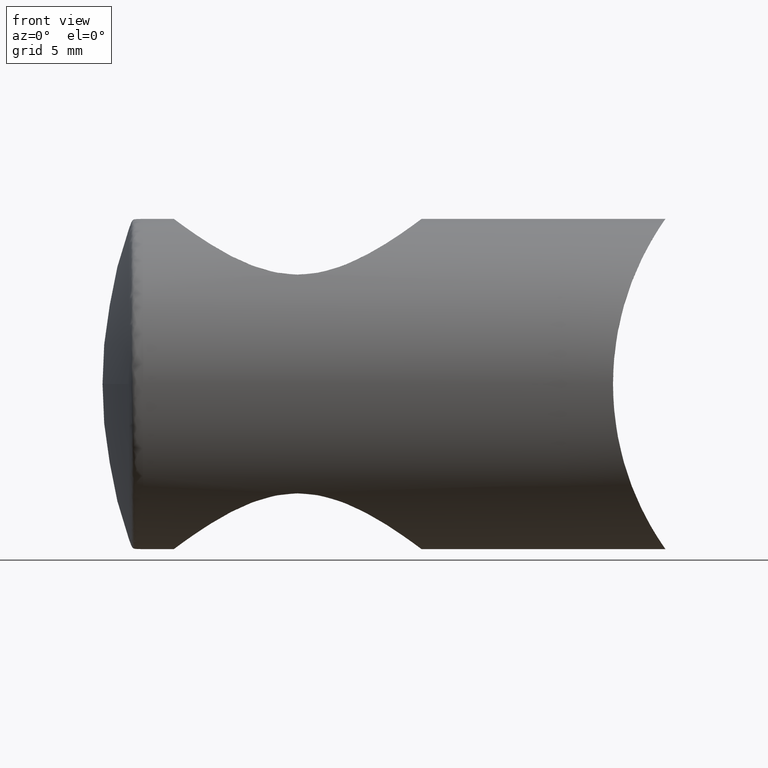
[diagram: clean part render]
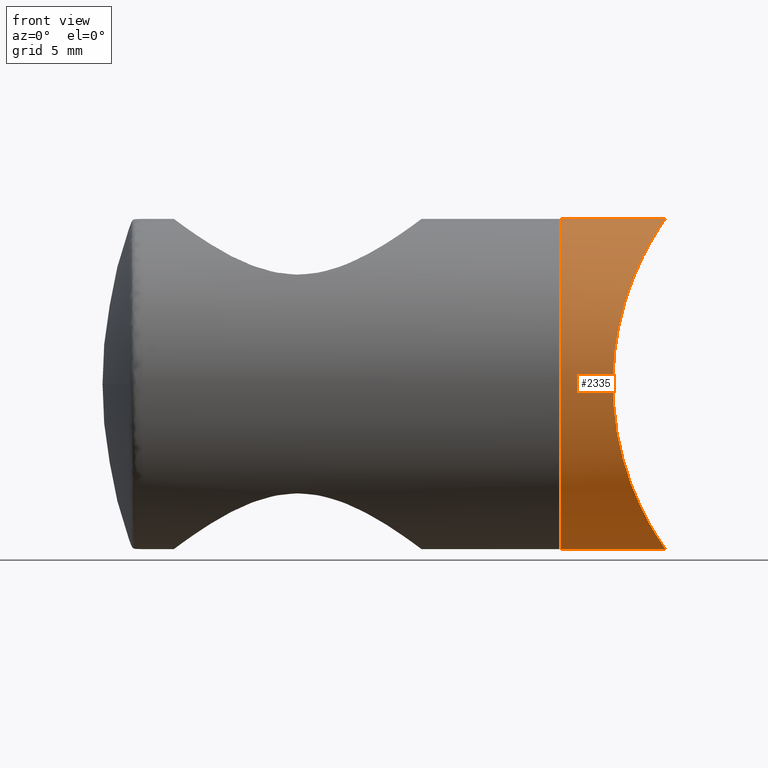
[diagram: same view with one face highlighted and labeled with its STEP entity id]
A machine part, front view. The second image highlights one B-rep face of the part: STEP entity #2335.
In plain terms, the highlighted cylindrical surface (partial cylindrical patch) has radius 11 mm, axis along (1, 0, 0).
Its self-contained STEP definition (entity closure, byte-faithful):
#4 = CARTESIAN_POINT ( 'NONE',  ( -6.456664575229944500, -10.39882424911159700, 3.605331494777063800 ) ) ;
#35 = EDGE_CURVE ( 'NONE', #5327, #5464, #2871, .T. ) ;
#62 = CARTESIAN_POINT ( 'NONE',  ( -3.290422593462756700, 1.001141658456604700E-015, -11.00000000000000000 ) ) ;
#119 = EDGE_CURVE ( 'NONE', #4464, #1450, #1755, .T. ) ;
#235 = CARTESIAN_POINT ( 'NONE',  ( -3.494806216514638300, -2.549407367438256200, 10.70669956222132400 ) ) ;
#261 = CARTESIAN_POINT ( 'NONE',  ( 0.0000000000000000000, 0.0000000000000000000, 0.0000000000000000000 ) ) ;
#274 = CARTESIAN_POINT ( 'NONE',  ( -6.579793492027664400, -10.61816424967427400, -2.896384209849269400 ) ) ;
#392 = CARTESIAN_POINT ( 'NONE',  ( -3.290422593462754000, -0.3722244977303322800, -10.99999999999999600 ) ) ;
#404 = DIRECTION ( 'NONE',  ( 0.0000000000000000000, 0.0000000000000000000, -1.000000000000000000 ) ) ;
#433 = CARTESIAN_POINT ( 'NONE',  ( -3.780638346371605800, -3.940766608476689900, -10.27607600446329700 ) ) ;
#443 = DIRECTION ( 'NONE',  ( 1.000000000000000000, -0.0000000000000000000, -0.0000000000000000000 ) ) ;
#471 = CARTESIAN_POINT ( 'NONE',  ( -3.290422593462756700, 1.377172786966447000E-015, 11.00000000000000000 ) ) ;
#608 = CARTESIAN_POINT ( 'NONE',  ( -3.290422593462753100, -0.3716663094851668800, 11.00000000000000000 ) ) ;
#619 = ORIENTED_EDGE ( 'NONE', *, *, #119, .T. ) ;
#680 = CARTESIAN_POINT ( 'NONE',  ( -3.356093708547345700, -1.473727821078040000, 10.90701569041684000 ) ) ;
#701 = CARTESIAN_POINT ( 'NONE',  ( -3.394636655602445000, -1.834427153566935600, -10.85209558101731800 ) ) ;
#719 = CARTESIAN_POINT ( 'NONE',  ( -4.250336640323755700, -5.545353003719242200, 9.506591479203063200 ) ) ;
#827 = CARTESIAN_POINT ( 'NONE',  ( -10.28848920863309300, 0.0000000000000000000, 0.0000000000000000000 ) ) ;
#838 = LINE ( 'NONE', #3051, #5018 ) ;
#1066 = CARTESIAN_POINT ( 'NONE',  ( -3.699711800985851600, -3.600747771440393000, 10.40037994727684500 ) ) ;
#1122 = CARTESIAN_POINT ( 'NONE',  ( -3.290422593462756700, 1.001141658456604700E-015, -11.00000000000000000 ) ) ;
#1136 = CARTESIAN_POINT ( 'NONE',  ( -10.28848920863309300, 1.347111479062088400E-015, 11.00000000000000000 ) ) ;
#1139 = CARTESIAN_POINT ( 'NONE',  ( -5.674407424825317600, -8.920622422952346800, 6.445737427428089600 ) ) ;
#1275 = AXIS2_PLACEMENT_3D ( 'NONE', #261, #2398, #4987 ) ;
#1450 = VERTEX_POINT ( 'NONE', #1769 ) ;
#1550 = CARTESIAN_POINT ( 'NONE',  ( -4.681454650182103300, -6.733018340796328400, 8.727513328510500700 ) ) ;
#1567 = CARTESIAN_POINT ( 'NONE',  ( -5.350734918056383900, -8.263087284265850500, -7.294765295766834100 ) ) ;
#1662 = CARTESIAN_POINT ( 'NONE',  ( -6.458272631459726300, -10.40170845747952900, -3.597070292574751100 ) ) ;
#1684 = CARTESIAN_POINT ( 'NONE',  ( -6.578276669467395100, -10.61548184621588400, 2.906115297747793800 ) ) ;
#1726 = ORIENTED_EDGE ( 'NONE', *, *, #4979, .T. ) ;
#1755 = CIRCLE ( 'NONE', #4359, 11.00000000000000000 ) ;
#1769 = CARTESIAN_POINT ( 'NONE',  ( -10.28848920863309300, 0.0000000000000000000, -11.00000000000000000 ) ) ;
#1861 = CARTESIAN_POINT ( 'NONE',  ( -3.290422593462756700, 1.377172786966447000E-015, 11.00000000000000000 ) ) ;
#1915 = CARTESIAN_POINT ( 'NONE',  ( -3.394703464883257000, -1.834941263391790800, 10.85199907854404900 ) ) ;
#1954 = CARTESIAN_POINT ( 'NONE',  ( -6.156700710708826700, -9.852860993167476900, 4.943596094221262200 ) ) ;
#1976 = CARTESIAN_POINT ( 'NONE',  ( -5.975378657228877600, -9.513964441284247900, 5.566383223861710600 ) ) ;
#1997 = CARTESIAN_POINT ( 'NONE',  ( -6.631107981546251500, -10.70845817127756500, -2.542137814846707300 ) ) ;
#2101 = CARTESIAN_POINT ( 'NONE',  ( -4.568234472601665700, -6.426396765144823500, -8.934540306034884700 ) ) ;
#2118 = CARTESIAN_POINT ( 'NONE',  ( -3.700048618465275700, -3.602271662870401700, -10.39986741266710800 ) ) ;
#2236 = CYLINDRICAL_SURFACE ( 'NONE', #1275, 11.00000000000000000 ) ;
#2329 = CARTESIAN_POINT ( 'NONE',  ( -3.780338032181348700, -3.939624871446495600, 10.27655075978982400 ) ) ;
#2335 = ADVANCED_FACE ( 'NONE', ( #4419 ), #2236, .T. ) ;
#2392 = CARTESIAN_POINT ( 'NONE',  ( -6.629621947806817200, -10.70584516270907600, 2.552927265652536800 ) ) ;
#2398 = DIRECTION ( 'NONE',  ( 1.000000000000000000, -0.0000000000000000000, -0.0000000000000000000 ) ) ;
#2508 = CARTESIAN_POINT ( 'NONE',  ( -3.494807730530001600, -2.549455419296251500, -10.70669783576151300 ) ) ;
#2520 = DIRECTION ( 'NONE',  ( 1.000000000000000000, -0.0000000000000000000, -0.0000000000000000000 ) ) ;
#2547 = CARTESIAN_POINT ( 'NONE',  ( -4.042820726724137600, -4.927525553046066900, -9.860477167563573200 ) ) ;
#2823 = CARTESIAN_POINT ( 'NONE',  ( -6.798721951525702200, -11.00040201061398500, -0.3593365793724928600 ) ) ;
#2840 = CARTESIAN_POINT ( 'NONE',  ( -4.244659967314192700, -5.547378595550031700, -9.524963735917126000 ) ) ;
#2871 = B_SPLINE_CURVE_WITH_KNOTS ( 'NONE', 3,
 ( #1861, #608, #3227, #680, #1915, #235, #4448, #1066, #2329, #5292, #4506, #719, #5488, #1550, #4528, #3685, #3667, #5082, #1139, #1976, #1954, #4644, #4, #1684, #2392, #4105, #5350, #2823, #3268, #2976, #4090, #1997, #274, #1662, #5469, #4549, #4929, #5370, #1567, #2934, #3249, #5043, #2101, #2840, #2547, #433, #2118, #4664, #2508, #701, #4207, #3402, #392, #1122 ),
 .UNSPECIFIED., .F., .F.,
 ( 4, 2, 2, 2, 2, 2, 2, 2, 2, 2, 2, 2, 2, 2, 2, 2, 2, 2, 2, 2, 2, 2, 2, 2, 2, 2, 4 ),
 ( 0.03520707265613901000, 0.03630514466430532400, 0.03740321667247163700, 0.03850128868063795000, 0.03959936068880426400, 0.04069743269697057700, 0.04179550470513689100, 0.04399164872146951700, 0.04508972072963582400, 0.04618779273780214400, 0.04838393675413475700, 0.04948200876230107000, 0.05058008077046738400, 0.05277622478679999700, 0.05387429679496631000, 0.05497236880313262400, 0.05607044081129893000, 0.05716851281946523600, 0.05936465683579785600, 0.06156080085213047600, 0.06265887286029678300, 0.06375694486846308900, 0.06595308888479570200, 0.06705116089296200800, 0.06814923290112831500, 0.06924730490929462100, 0.07034537691746091400 ),
 .UNSPECIFIED. ) ;
#2934 = CARTESIAN_POINT ( 'NONE',  ( -5.016739898689202400, -7.517810674090877200, -8.037759371582064100 ) ) ;
#2976 = CARTESIAN_POINT ( 'NONE',  ( -6.745570668294734100, -10.90838186840070300, -1.463753684364801600 ) ) ;
#3051 = CARTESIAN_POINT ( 'NONE',  ( 0.0000000000000000000, 1.347111479062088400E-015, 11.00000000000000000 ) ) ;
#3227 = CARTESIAN_POINT ( 'NONE',  ( -3.303946729592600400, -0.7429864394098740800, 10.98102163336688800 ) ) ;
#3249 = CARTESIAN_POINT ( 'NONE',  ( -4.904333984554049200, -7.257528744904020000, -8.273625352358434900 ) ) ;
#3268 = CARTESIAN_POINT ( 'NONE',  ( -6.787940770070325600, -10.98181085941523500, -0.7315737033097957600 ) ) ;
#3402 = CARTESIAN_POINT ( 'NONE',  ( -3.303930920307867100, -0.7426018925523667500, -10.98104381506503900 ) ) ;
#3572 = VECTOR ( 'NONE', #443, 1000.000000000000000 ) ;
#3581 = EDGE_CURVE ( 'NONE', #4464, #5327, #838, .T. ) ;
#3667 = CARTESIAN_POINT ( 'NONE',  ( -5.351730985665724000, -8.255643156927373400, 7.278082958569272300 ) ) ;
#3685 = CARTESIAN_POINT ( 'NONE',  ( -5.241093669248186000, -8.018336806119469500, 7.538524817008311500 ) ) ;
#4090 = CARTESIAN_POINT ( 'NONE',  ( -6.713995204284229200, -10.85356686217182100, -1.825822402108322300 ) ) ;
#4105 = CARTESIAN_POINT ( 'NONE',  ( -6.754166646912024100, -10.92391636612801300, 1.482661226408133400 ) ) ;
#4207 = CARTESIAN_POINT ( 'NONE',  ( -3.356038623449523900, -1.473118695534572800, -10.90709412025343500 ) ) ;
#4218 = CARTESIAN_POINT ( 'NONE',  ( 0.0000000000000000000, 0.0000000000000000000, -11.00000000000000000 ) ) ;
#4305 = ORIENTED_EDGE ( 'NONE', *, *, #35, .F. ) ;
#4359 = AXIS2_PLACEMENT_3D ( 'NONE', #827, #2520, #404 ) ;
#4419 = FACE_OUTER_BOUND ( 'NONE', #4642, .T. ) ;
#4448 = CARTESIAN_POINT ( 'NONE',  ( -3.556412563513042800, -2.903214260135497800, 10.61624389890309800 ) ) ;
#4464 = VERTEX_POINT ( 'NONE', #1136 ) ;
#4506 = CARTESIAN_POINT ( 'NONE',  ( -4.050325737544182100, -4.920350250000526100, 9.844611465448192400 ) ) ;
#4528 = CARTESIAN_POINT ( 'NONE',  ( -4.907091666845663400, -7.273333289541952200, 8.281965290395900700 ) ) ;
#4549 = CARTESIAN_POINT ( 'NONE',  ( -6.158241248149921400, -9.855736573161655300, -4.938159389643654900 ) ) ;
#4642 = EDGE_LOOP ( 'NONE', ( #5300, #619, #1726, #4305 ) ) ;
#4644 = CARTESIAN_POINT ( 'NONE',  ( -6.386668092202577400, -10.27298054395667400, 3.949097842147987000 ) ) ;
#4664 = CARTESIAN_POINT ( 'NONE',  ( -3.556537048223928900, -2.903935464766747500, -10.61606151784380900 ) ) ;
#4714 = LINE ( 'NONE', #4218, #3572 ) ;
#4929 = CARTESIAN_POINT ( 'NONE',  ( -5.975814097754466500, -9.514948232946490900, -5.565723516318776400 ) ) ;
#4979 = EDGE_CURVE ( 'NONE', #1450, #5464, #4714, .T. ) ;
#4987 = DIRECTION ( 'NONE',  ( 0.0000000000000000000, 0.0000000000000000000, -1.000000000000000000 ) ) ;
#5018 = VECTOR ( 'NONE', #5156, 1000.000000000000000 ) ;
#5043 = CARTESIAN_POINT ( 'NONE',  ( -4.680168964247793700, -6.712146404566651000, -8.721908655676198700 ) ) ;
#5082 = CARTESIAN_POINT ( 'NONE',  ( -5.568935016506912900, -8.707932662930870600, 6.730382175196285600 ) ) ;
#5156 = DIRECTION ( 'NONE',  ( 1.000000000000000000, -0.0000000000000000000, -0.0000000000000000000 ) ) ;
#5292 = CARTESIAN_POINT ( 'NONE',  ( -3.955642104404867100, -4.599428443438956300, 9.998669793524600300 ) ) ;
#5300 = ORIENTED_EDGE ( 'NONE', *, *, #3581, .F. ) ;
#5327 = VERTEX_POINT ( 'NONE', #471 ) ;
#5350 = CARTESIAN_POINT ( 'NONE',  ( -6.798012159345281800, -10.99917600544538700, 0.7549807221483749700 ) ) ;
#5370 = CARTESIAN_POINT ( 'NONE',  ( -5.569731267505994200, -8.714134728476102200, -6.750953567439344400 ) ) ;
#5464 = VERTEX_POINT ( 'NONE', #62 ) ;
#5469 = CARTESIAN_POINT ( 'NONE',  ( -6.388507265398160100, -10.27630933081545800, -3.940521149120465700 ) ) ;
#5488 = CARTESIAN_POINT ( 'NONE',  ( -4.356115944978260000, -5.850620190148466000, 9.321802379895968800 ) ) ;